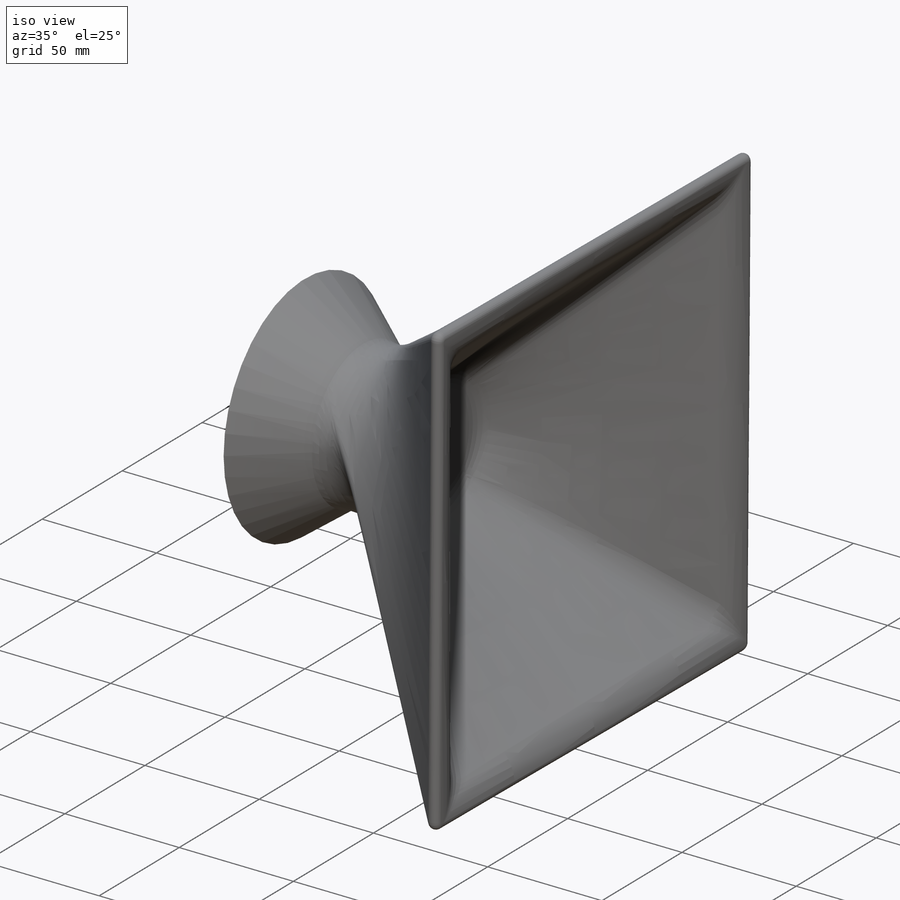
[diagram: iso view]
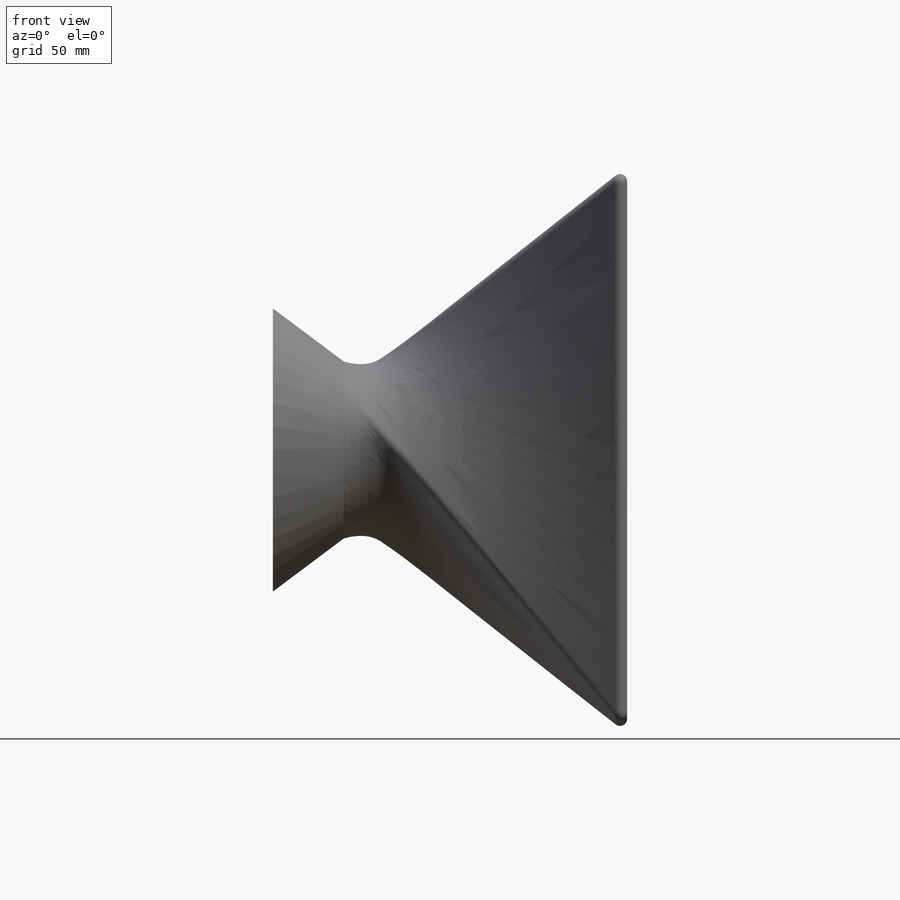
[diagram: front view]
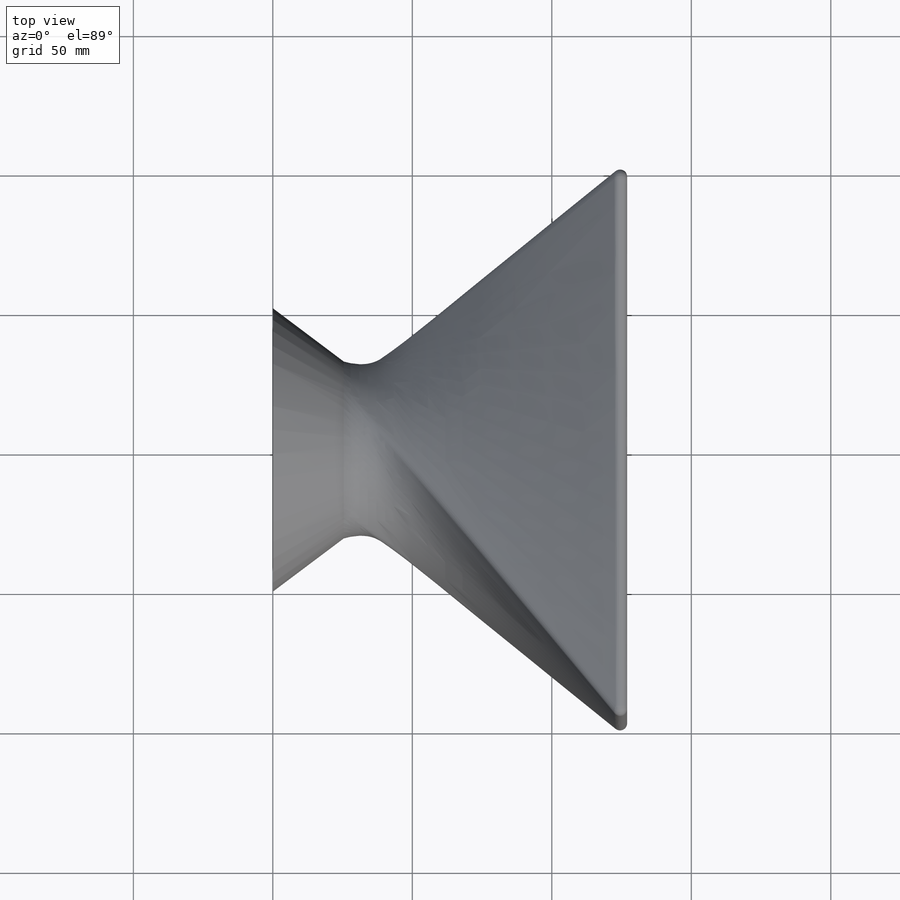
[diagram: top view]
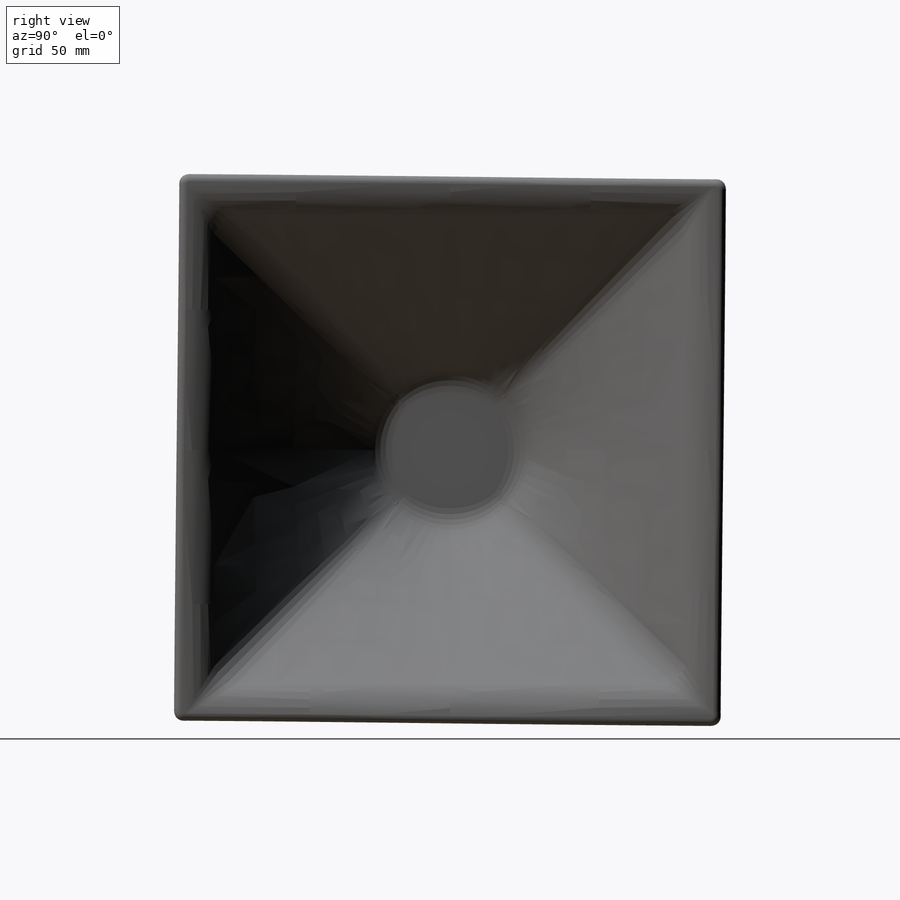
[diagram: right view]
SOLIDWORKS PART (.sldprt)
format: sldprt  version: not decoded by parser v0  size: 499,712 bytes
history: native  units: mm
features: fillet x7, sketch x5, plane x5, shell x2, material x1 (+13 scaffold rows collapsed)
feature tree (33):
  scaffold x13  (default folders/planes/origin — collapsed)
  material  "Material <not specified>"
  sketch  "Sketch1"  dims[D1=101.6mm]
  plane  "Plane1"
  plane  "Plane2"  Offset=127mm
  sketch  "Sketch2"  dims[D5=203.2mm D1=203.2mm D2=203.2mm D3=101.6mm D4=101.6mm]
  plane  "Plane3"  Offset=25.4mm
  sketch  "Sketch4"  dims[D2=~31.660996mm D1=2.54mm]
  shell  "Shell1"  Thickness=8.89mm
  shell  "Loft2"  [1 undecoded]
  plane  "Plane4"  Offset=57.15mm
  sketch  "Sketch5"  dims[D1=50.8mm]
  plane  "Plane5"
  sketch  "Sketch6"  dims[D1=12.7mm D2=12.7mm D3=12.7mm D4=12.7mm]
  fillet  "Fillet2"  Radius=15.24mm
  fillet  "Fillet4"  Radius=15.24mm
  fillet  "Fillet5"  Radius=15.24mm
  fillet  "Fillet8"  Radius=10.16mm
  fillet  "Fillet12"  Radius=2.54mm
  fillet  "Fillet13"  Radius=3.81mm
  fillet  "Fillet18"  Radius=25.4mm
decode coverage: 13 of 14 modeling features carry decoded parameters
note: ~ marks probable driven/reference dimensions
note: 1 parameter value undecoded
note: suppression state not decoded; provenance and decode notes live in map.json
